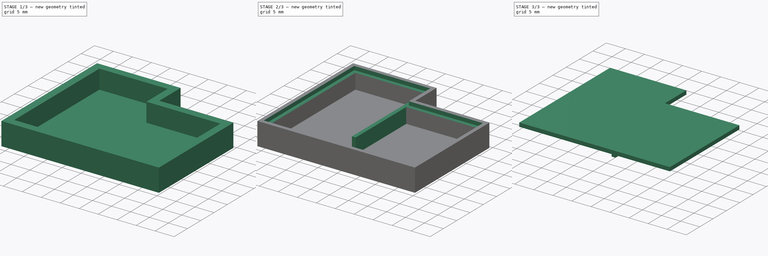
[diagram: build sequence overview — one tinted view per stage of 3, left to right]
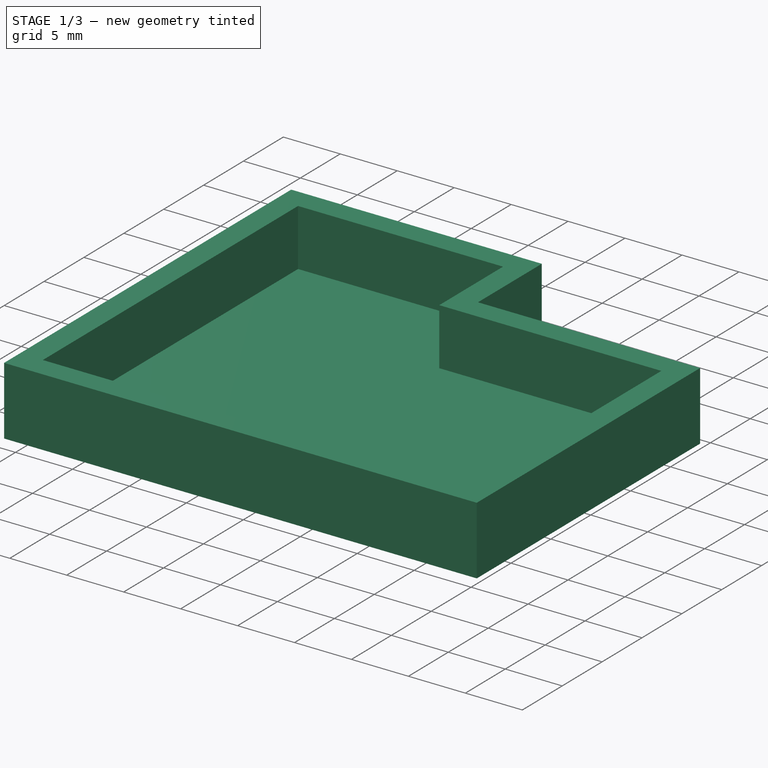
[diagram: stage 1 of 3 — iso view after this stage's code; geometry added in this stage tinted green]
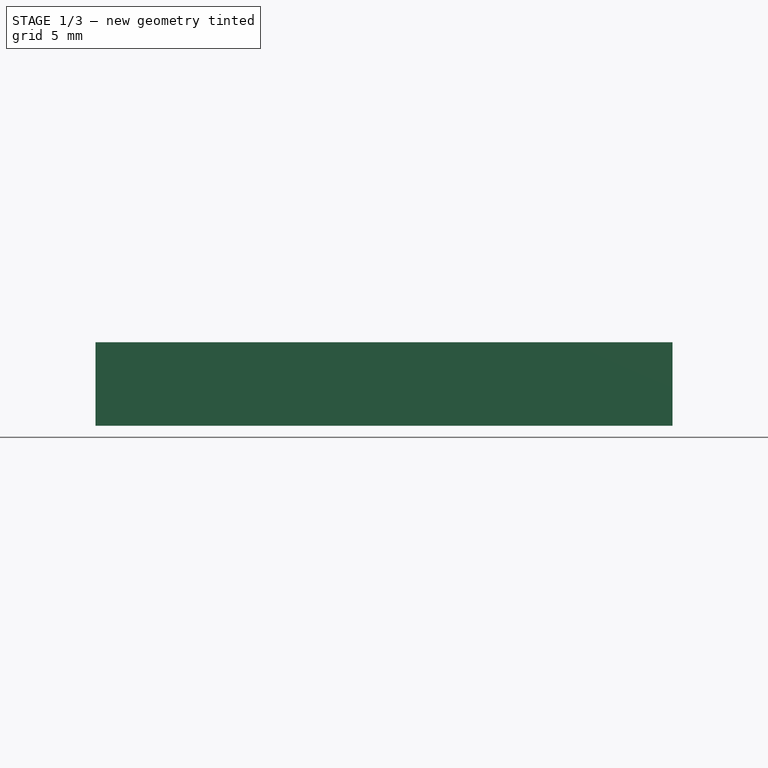
[diagram: stage 1 of 3 — front view after this stage's code; geometry added in this stage tinted green]
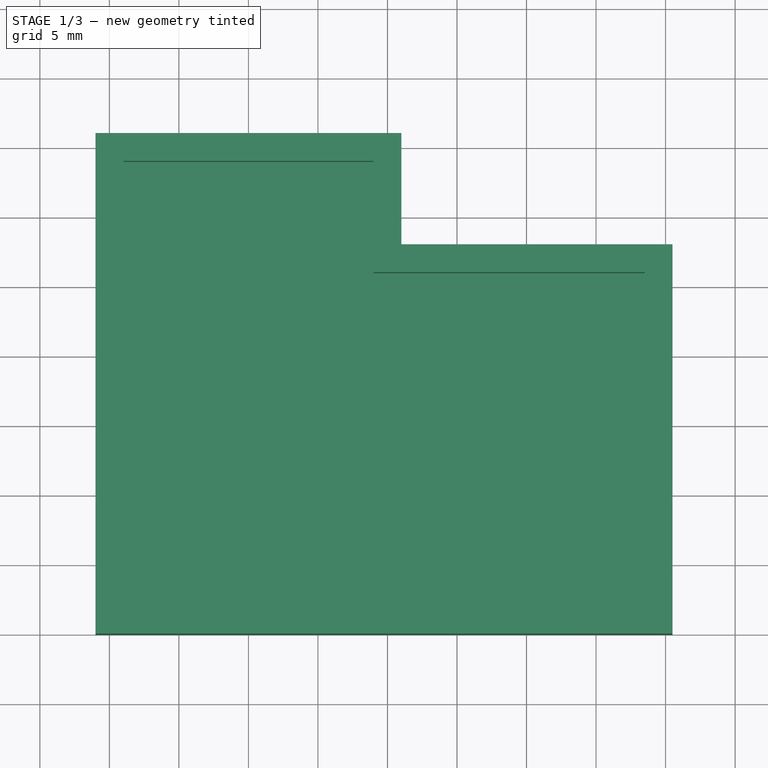
[diagram: stage 1 of 3 — top view after this stage's code; geometry added in this stage tinted green]
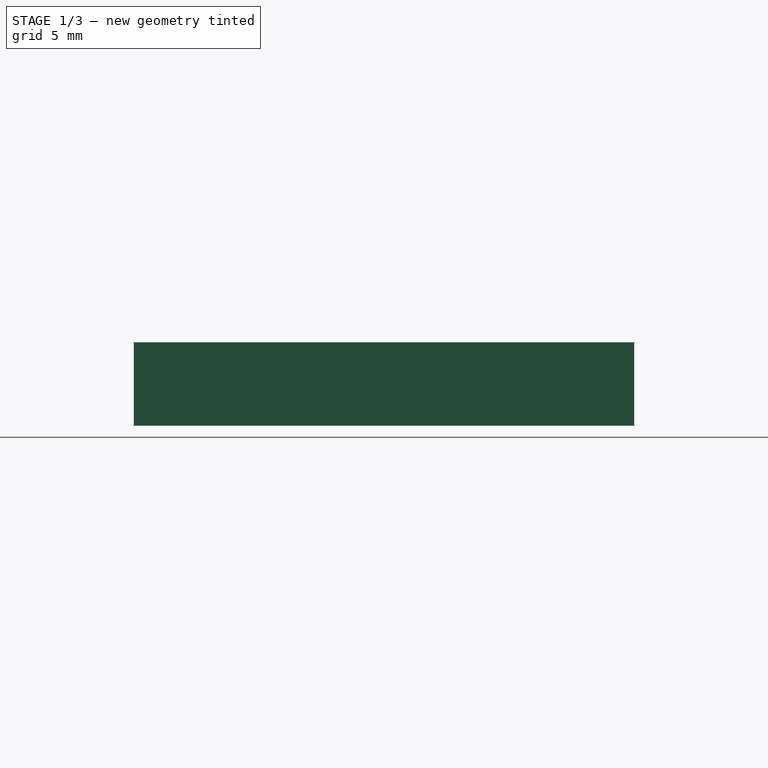
[diagram: stage 1 of 3 — right view after this stage's code; geometry added in this stage tinted green]
FCSTD DOCUMENT  (FreeCAD 1.0R39285 (Git))
Label: Couvercle
License: All rights reserved
LicenseURL: https://en.wikipedia.org/wiki/All_rights_reserved
objects: Sketcher::SketchObject×8, PartDesign::Pad×4, PartDesign::Pocket×4, PartDesign::Body×1
note: 41 computed .brp shape members not serialized (recipe doc carries the construction recipe); baked Part::Feature solids carry a one-line shape summary decoded from their .brp

FEATURE [Sketcher::SketchObject] Sketch
  ArcFitTolerance = 1e-06
  AttachmentSupport = -> [XY_Plane]
  FullyConstrained = true
  MakeInternals = false
  MapMode = 5
  sketch-geometry (4):
    g0: LineSegment StartX=-21 StartY=0 StartZ=0 EndX=20.5 EndY=0 EndZ=0
    g1: LineSegment StartX=20.5 StartY=0 StartZ=0 EndX=20.5 EndY=36 EndZ=0
    g2: LineSegment StartX=20.5 StartY=36 StartZ=0 EndX=-21 EndY=36 EndZ=0
    g3: LineSegment StartX=-21 StartY=36 StartZ=0 EndX=-21 EndY=0 EndZ=0
  constraints (12):
    c: Coincident(g0,g1)
    c: Coincident(g1,g2)
    c: Coincident(g2,g3)
    c: Coincident(g3,g0)
    c: Horizontal(g0)
    c: Horizontal(g2)
    c: Vertical(g1)
    c: Vertical(g3)
    c: PointOnObject(g0,g-1)
    c: DistanceX(g0,g-1) = 21
    c: DistanceX(g-1,g0) = 20.5
    c: DistanceY(g3,g3) = 36
FEATURE [PartDesign::Pad] Pad
  Direction = (0,0,1)
  Length = 6
  Length2 = 10
  Profile = -> Sketch
  ReferenceAxis = -> Sketch [N_Axis]
  Refine = true
  Suppressed = false
  Type = 0
FEATURE [Sketcher::SketchObject] Sketch001
  ArcFitTolerance = 1e-06
  AttachmentSupport = -> [Pad]
  ExternalGeometry = -> [Pad]
  FullyConstrained = true
  MakeInternals = false
  MapMode = 5
  Placement = pos=(0,0,6) rot=(0,0,1;0rad)
  sketch-geometry (6):
    g0: LineSegment StartX=-19 StartY=2 StartZ=0 EndX=18.5 EndY=2 EndZ=0
    g1: LineSegment StartX=-1 StartY=34 StartZ=0 EndX=-19 EndY=34 EndZ=0
    g2: LineSegment StartX=-19 StartY=34 StartZ=0 EndX=-19 EndY=2 EndZ=0
    g3: LineSegment StartX=18.5 StartY=2 StartZ=0 EndX=18.5 EndY=26 EndZ=0
    g4: LineSegment StartX=18.5 StartY=26 StartZ=0 EndX=-1 EndY=26 EndZ=0
    g5: LineSegment StartX=-1 StartY=26 StartZ=0 EndX=-1 EndY=34 EndZ=0
  constraints (18):
    c: Coincident(g1,g2)
    c: Coincident(g2,g0)
    c: Horizontal(g0)
    c: Horizontal(g1)
    c: Vertical(g2)
    c: DistanceX(g-3,g0) = 2
    c: DistanceY(g-3,g0) = 2
    c: DistanceY(g1,g-3) = 2
    c: DistanceX(g0,g-4) = 2
    c: Coincident(g3,g0)
    c: Vertical(g3)
    c: Coincident(g4,g3)
    c: Horizontal(g4)
    c: Coincident(g5,g4)
    c: Vertical(g5)
    c: Coincident(g1,g5)
    c: DistanceY(g3,g3) = 24
    c: DistanceX(g4,g-1) = 1
FEATURE [PartDesign::Pocket] Pocket
  BaseFeature = -> Pad
  Direction = (0,0,-1)
  Length = 5
  Length2 = 5
  Profile = -> Sketch001
  ReferenceAxis = -> Sketch001 [N_Axis]
  Refine = true
  Suppressed = false
  Type = 0
FEATURE [Sketcher::SketchObject] Sketch002
  ArcFitTolerance = 1e-06
  AttachmentSupport = -> [Pocket]
  ExternalGeometry = -> [Pocket]
  FullyConstrained = true
  MakeInternals = false
  MapMode = 5
  Placement = pos=(0,0,6) rot=(0,0,1;0rad)
  sketch-geometry (4):
    g0: LineSegment StartX=20.5 StartY=36 StartZ=0 EndX=1 EndY=36 EndZ=0
    g1: LineSegment StartX=1 StartY=36 StartZ=0 EndX=1 EndY=28 EndZ=0
    g2: LineSegment StartX=1 StartY=28 StartZ=0 EndX=20.5 EndY=28 EndZ=0
    g3: LineSegment StartX=20.5 StartY=28 StartZ=0 EndX=20.5 EndY=36 EndZ=0
  constraints (11):
    c: Coincident(g0,g1)
    c: Coincident(g1,g2)
    c: Coincident(g2,g3)
    c: Coincident(g3,g0)
    c: Horizontal(g0)
    c: Horizontal(g2)
    c: Vertical(g1)
    c: Vertical(g3)
    c: Coincident(g0,g-3)
    c: DistanceX(g-4,g1) = 2
    c: DistanceY(g-4,g1) = 2
FEATURE [PartDesign::Pocket] Pocket001
  BaseFeature = -> Pocket
  Direction = (0,0,-1)
  Length = 5
  Length2 = 5
  Profile = -> Sketch002
  ReferenceAxis = -> Sketch002 [N_Axis]
  Refine = true
  Suppressed = false
  Type = 1
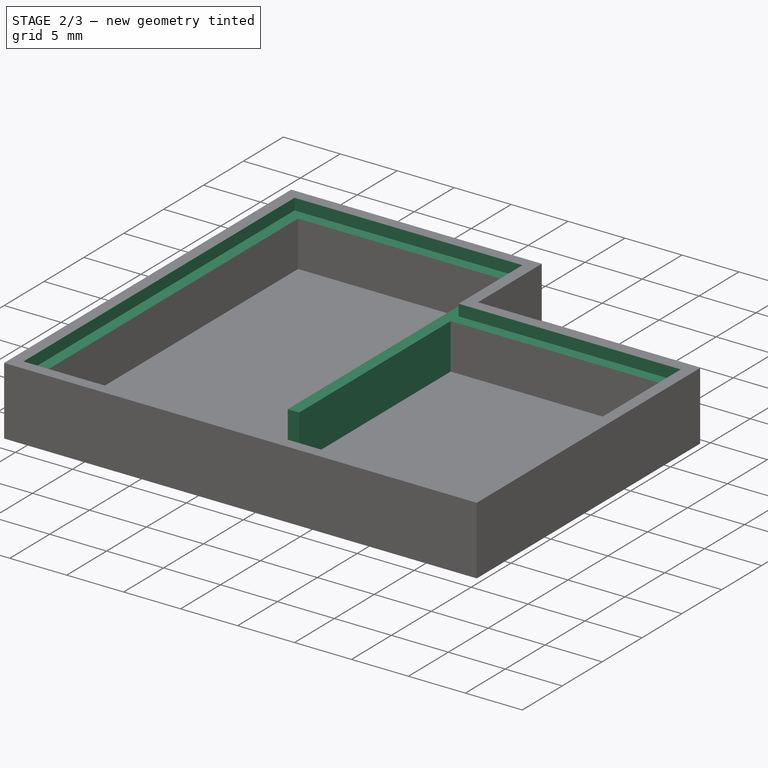
[diagram: stage 2 of 3 — iso view after this stage's code; geometry added in this stage tinted green]
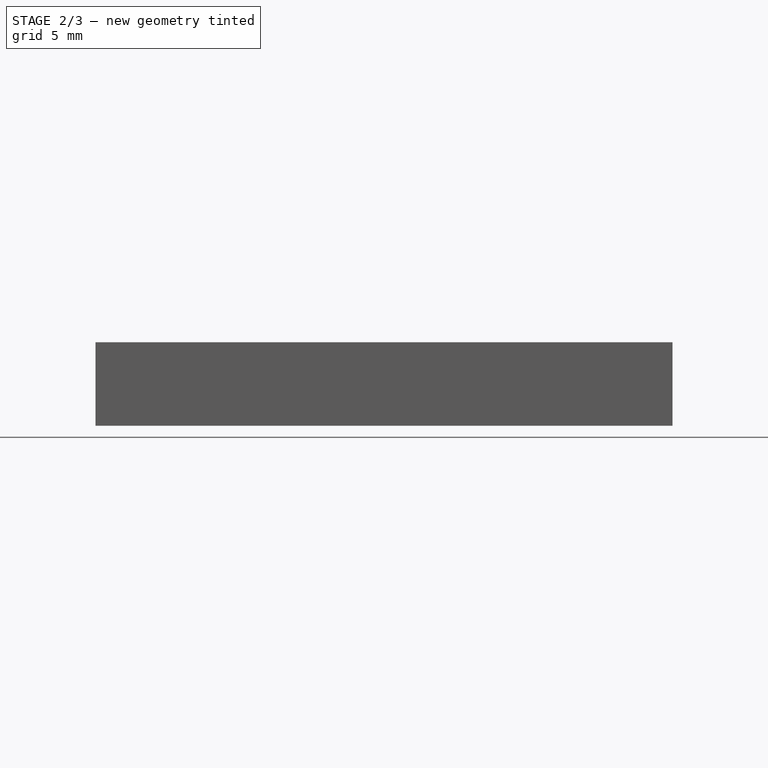
[diagram: stage 2 of 3 — front view after this stage's code; geometry added in this stage tinted green]
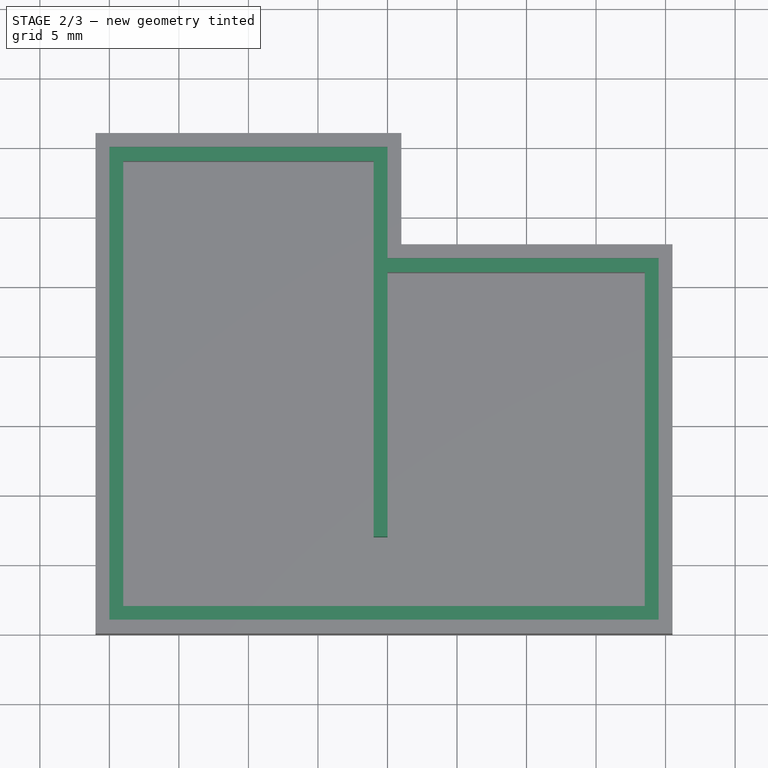
[diagram: stage 2 of 3 — top view after this stage's code; geometry added in this stage tinted green]
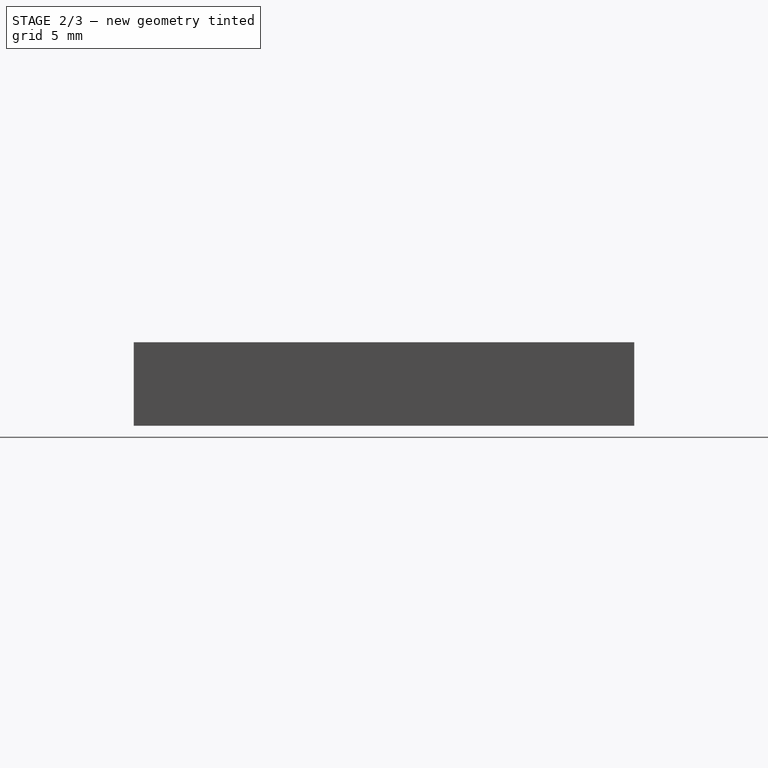
[diagram: stage 2 of 3 — right view after this stage's code; geometry added in this stage tinted green]
FEATURE [Sketcher::SketchObject] Sketch004
  ArcFitTolerance = 1e-06
  AttachmentSupport = -> [Pocket001]
  ExternalGeometry = -> [Pocket001]
  FullyConstrained = true
  MakeInternals = false
  MapMode = 5
  Placement = pos=(0,0,6) rot=(0,0,1;0rad)
  sketch-geometry (6):
    g0: LineSegment StartX=-20 StartY=35 StartZ=0 EndX=0 EndY=35 EndZ=0
    g1: LineSegment StartX=0 StartY=35 StartZ=0 EndX=0 EndY=27 EndZ=0
    g2: LineSegment StartX=0 StartY=27 StartZ=0 EndX=19.5 EndY=27 EndZ=0
    g3: LineSegment StartX=19.5 StartY=27 StartZ=0 EndX=19.5 EndY=1 EndZ=0
    g4: LineSegment StartX=19.5 StartY=1 StartZ=0 EndX=-20 EndY=1 EndZ=0
    g5: LineSegment StartX=-20 StartY=1 StartZ=0 EndX=-20 EndY=35 EndZ=0
  constraints (18):
    c: PointOnObject(g0,g-2)
    c: Horizontal(g0)
    c: Coincident(g0,g1)
    c: PointOnObject(g1,g-2)
    c: Coincident(g1,g2)
    c: Horizontal(g2)
    c: Coincident(g2,g3)
    c: Vertical(g3)
    c: Coincident(g3,g4)
    c: Horizontal(g4)
    c: Coincident(g4,g5)
    c: Coincident(g5,g0)
    c: Vertical(g5)
    c: DistanceX(g0,g-3) = 1
    c: DistanceY(g-3,g0) = 1
    c: DistanceX(g-5,g3) = 1
    c: DistanceY(g3,g-5) = 1
    c: DistanceY(g-4,g1) = 1
FEATURE [PartDesign::Pocket] Pocket002  label="Pocket_Boitier"
  BaseFeature = -> Pocket001
  Direction = (0,0,-1)
  Length = 1
  Length2 = 5
  Profile = -> Sketch004
  ReferenceAxis = -> Sketch004 [N_Axis]
  Refine = true
  Suppressed = false
  Type = 0
FEATURE [Sketcher::SketchObject] Sketch005
  ArcFitTolerance = 1e-06
  AttachmentSupport = -> [Pocket002]
  ExternalGeometry = -> [Pocket002]
  FullyConstrained = true
  MakeInternals = false
  MapMode = 5
  Placement = pos=(0,0,1) rot=(0,0,1;0rad)
  sketch-geometry (4):
    g0: LineSegment StartX=-1 StartY=26 StartZ=0 EndX=-1 EndY=7 EndZ=0
    g1: LineSegment StartX=-1 StartY=7 StartZ=0 EndX=0 EndY=7 EndZ=0
    g2: LineSegment StartX=0 StartY=7 StartZ=0 EndX=0 EndY=26 EndZ=0
    g3: LineSegment StartX=0 StartY=26 StartZ=0 EndX=-1 EndY=26 EndZ=0
  constraints (11):
    c: Coincident(g0,g1)
    c: Coincident(g1,g2)
    c: Coincident(g2,g3)
    c: Coincident(g3,g0)
    c: Vertical(g0)
    c: Vertical(g2)
    c: Horizontal(g1)
    c: Horizontal(g3)
    c: Coincident(g0,g-3)
    c: DistanceX(g0,g2) = 1
    c: DistanceY(g-4,g1) = 5
FEATURE [PartDesign::Pad] Pad001  label="Pad_Boitier"
  BaseFeature = -> Pocket002
  Direction = (0,0,1)
  Length = 4
  Length2 = 10
  Profile = -> Sketch005
  ReferenceAxis = -> Sketch005 [N_Axis]
  Refine = true
  Suppressed = false
  Type = 0
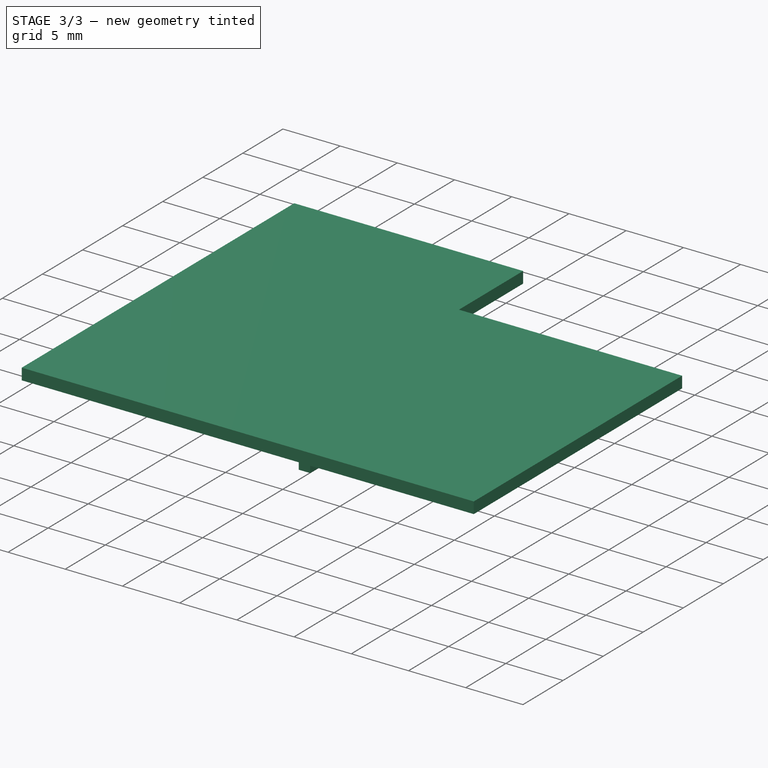
[diagram: stage 3 of 3 — iso view after this stage's code; geometry added in this stage tinted green]
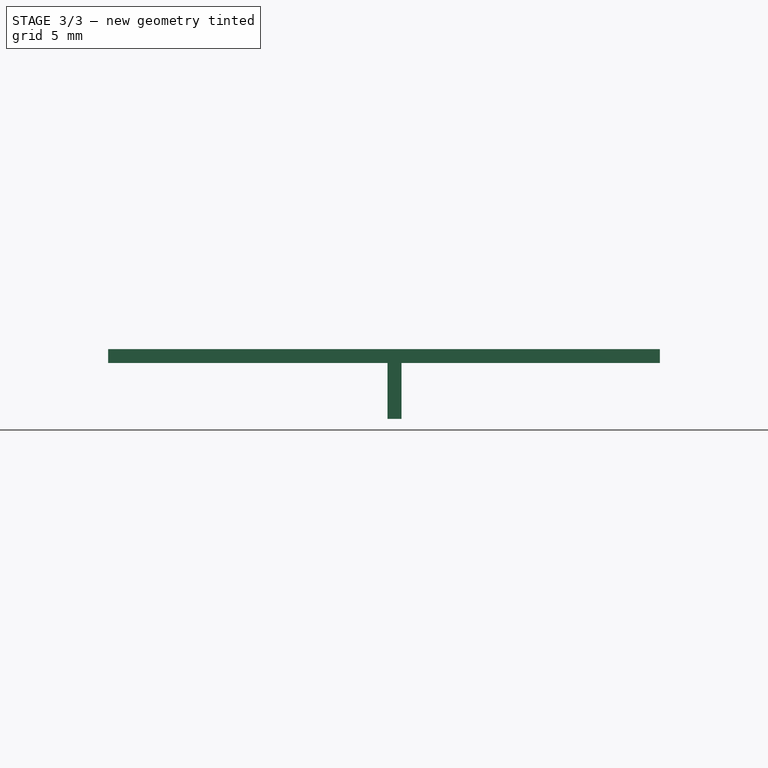
[diagram: stage 3 of 3 — front view after this stage's code; geometry added in this stage tinted green]
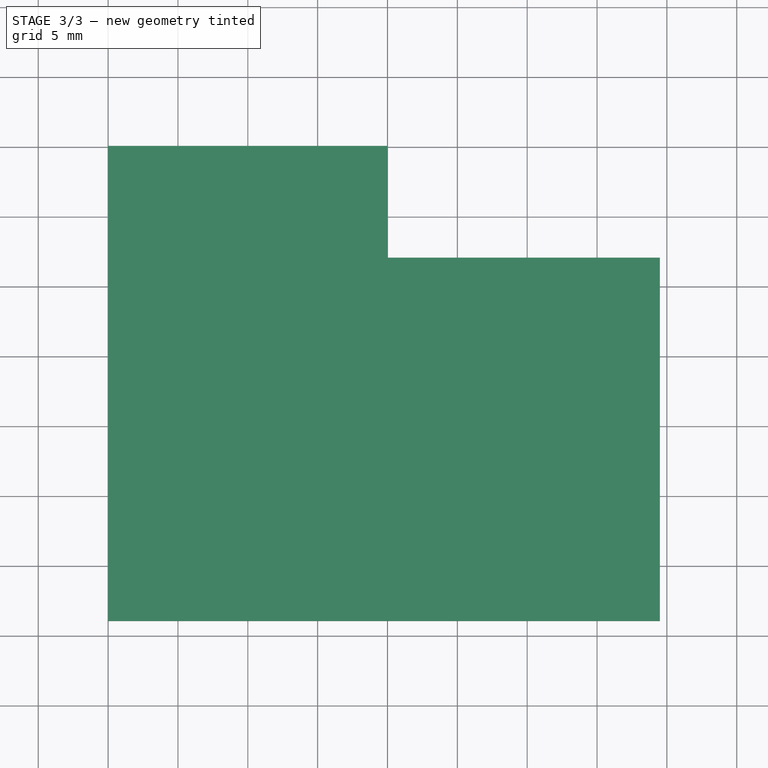
[diagram: stage 3 of 3 — top view after this stage's code; geometry added in this stage tinted green]
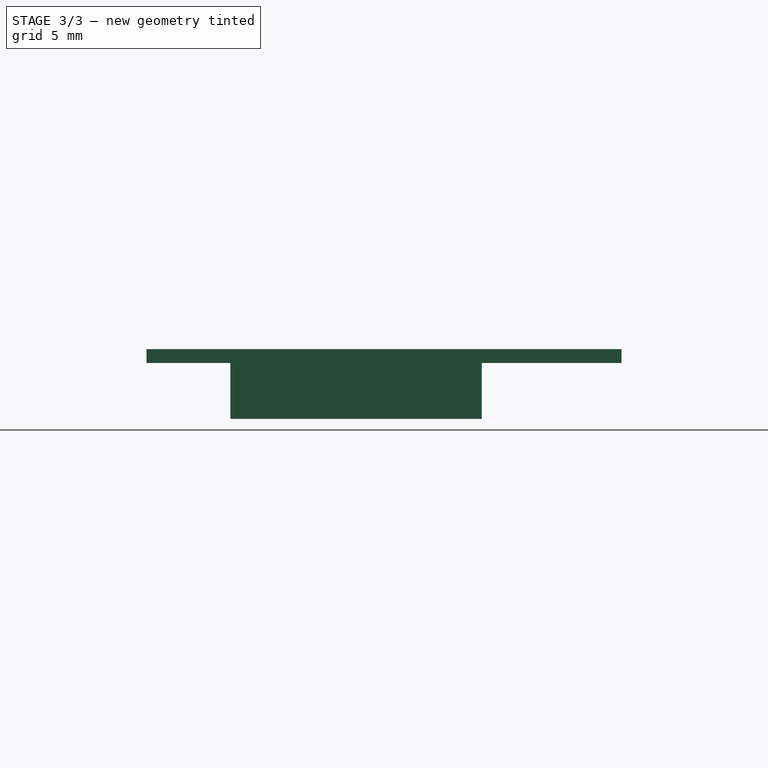
[diagram: stage 3 of 3 — right view after this stage's code; geometry added in this stage tinted green]
FEATURE [Sketcher::SketchObject] Sketch006
  ArcFitTolerance = 1e-06
  AttachmentSupport = -> [Pad001]
  ExternalGeometry = -> [Pad001]
  FullyConstrained = true
  MakeInternals = false
  MapMode = 5
  Placement = pos=(0,0,6) rot=(0,0,1;0rad)
  sketch-geometry (6):
    g0: LineSegment StartX=-20 StartY=35 StartZ=0 EndX=0 EndY=35 EndZ=0
    g1: LineSegment StartX=0 StartY=35 StartZ=0 EndX=0 EndY=27 EndZ=0
    g2: LineSegment StartX=0 StartY=27 StartZ=0 EndX=19.5 EndY=27 EndZ=0
    g3: LineSegment StartX=19.5 StartY=27 StartZ=0 EndX=19.5 EndY=1 EndZ=0
    g4: LineSegment StartX=19.5 StartY=1 StartZ=0 EndX=-20 EndY=1 EndZ=0
    g5: LineSegment StartX=-20 StartY=1 StartZ=0 EndX=-20 EndY=35 EndZ=0
  constraints (13):
    c: Coincident(g-3,g0)
    c: Coincident(g0,g-3)
    c: Coincident(g0,g1)
    c: PointOnObject(g1,g-2)
    c: Coincident(g1,g2)
    c: Coincident(g2,g-5)
    c: Horizontal(g2)
    c: Coincident(g2,g3)
    c: Coincident(g3,g-5)
    c: Coincident(g3,g4)
    c: Coincident(g4,g-4)
    c: Coincident(g4,g5)
    c: Coincident(g5,g0)
FEATURE [PartDesign::Pad] Pad002
  BaseFeature = -> Pad001
  Direction = (0,0,1)
  Length = 10
  Length2 = 10
  Profile = -> Sketch006
  ReferenceAxis = -> Sketch006 [N_Axis]
  Refine = true
  Reversed = true
  Suppressed = false
  Type = 0
FEATURE [Sketcher::SketchObject] Sketch007
  ArcFitTolerance = 1e-06
  AttachmentSupport = -> [Pad002]
  ExternalGeometry = -> [Pad002]
  FullyConstrained = false
  MakeInternals = false
  MapMode = 5
  Placement = pos=(-21,0,0) rot=(0.57735,-0.57735,-0.57735;2.0944rad)
  sketch-geometry (4):
    g0: LineSegment StartX=-41.2353 StartY=17.8413 StartZ=0 EndX=-41.2353 EndY=-3 EndZ=0
    g1: LineSegment StartX=-41.2353 StartY=-3 StartZ=0 EndX=11.465 EndY=-3 EndZ=0
    g2: LineSegment StartX=11.465 StartY=-3 StartZ=0 EndX=11.465 EndY=17.8413 EndZ=0
    g3: LineSegment StartX=11.465 StartY=17.8413 StartZ=0 EndX=-41.2353 EndY=17.8413 EndZ=0
  constraints (9):
    c: Coincident(g0,g1)
    c: Coincident(g1,g2)
    c: Coincident(g2,g3)
    c: Coincident(g3,g0)
    c: Vertical(g0)
    c: Vertical(g2)
    c: Horizontal(g1)
    c: Horizontal(g3)
    c: DistanceY(g-3,g0) = 1
FEATURE [PartDesign::Pocket] Pocket003
  BaseFeature = -> Pad002
  Direction = (1,0,0)
  Length = 5
  Length2 = 5
  Profile = -> Sketch007
  ReferenceAxis = -> Sketch007 [N_Axis]
  Refine = true
  Suppressed = false
  Type = 1
FEATURE [Sketcher::SketchObject] Sketch008
  ArcFitTolerance = 1e-06
  AttachmentSupport = -> [Pocket003]
  ExternalGeometry = -> [Pocket003]
  FullyConstrained = true
  MakeInternals = false
  MapMode = 5
  Placement = pos=(0,0,-4) rot=(1,0,0;3.14159rad)
  sketch-geometry (4):
    g0: LineSegment StartX=0 StartY=-7 StartZ=0 EndX=0 EndY=-25 EndZ=0
    g1: LineSegment StartX=0 StartY=-25 StartZ=0 EndX=1 EndY=-25 EndZ=0
    g2: LineSegment StartX=1 StartY=-25 StartZ=0 EndX=1 EndY=-7 EndZ=0
    g3: LineSegment StartX=1 StartY=-7 StartZ=0 EndX=0 EndY=-7 EndZ=0
  constraints (12):
    c: Coincident(g0,g1)
    c: Coincident(g1,g2)
    c: Coincident(g2,g3)
    c: Coincident(g3,g0)
    c: Vertical(g0)
    c: Vertical(g2)
    c: Horizontal(g1)
    c: Horizontal(g3)
    c: PointOnObject(g0,g-2)
    c: DistanceY(g-3,g1) = 2
    c: DistanceY(g2,g-1) = 7
    c: DistanceX(g3,g3) = 1
FEATURE [PartDesign::Pad] Pad003  label="Pad_Couvercle"
  BaseFeature = -> Pocket003
  Direction = (0,0,-1)
  Length = 4
  Length2 = 10
  Profile = -> Sketch008
  ReferenceAxis = -> Sketch008 [N_Axis]
  Refine = true
  Suppressed = false
  Type = 0
FEATURE [PartDesign::Body] Body  label="Corps"
  AllowCompound = false
  Group = -> [Sketch,Pad,Sketch001,Pocket,Sketch002,Pocket001,Sketch004,Pocket002,Sketch005,Pad001,Sketch006,Pad002,Sketch007,Pocket003,Sketch008,Pad003]
  Origin = -> Origin
  Tip = -> Pad003
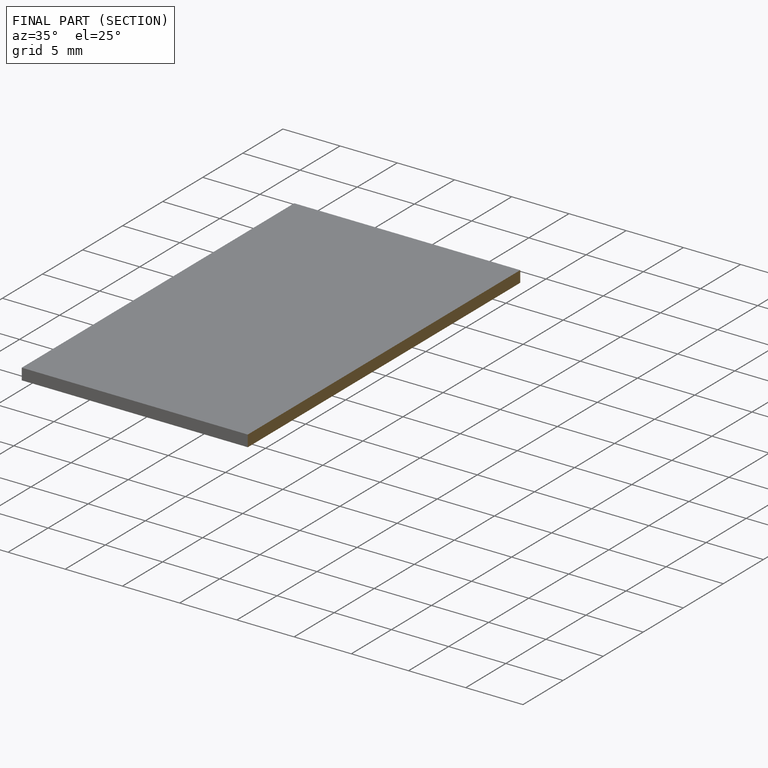
[diagram: finished part — half-section view (interior)]
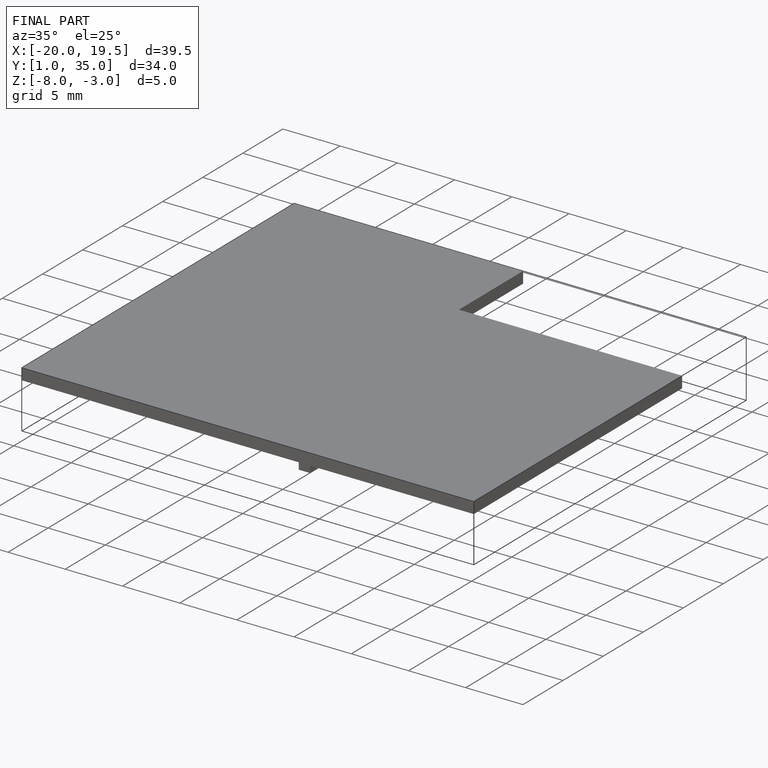
[diagram: finished part — iso view with bounding-box wireframe]
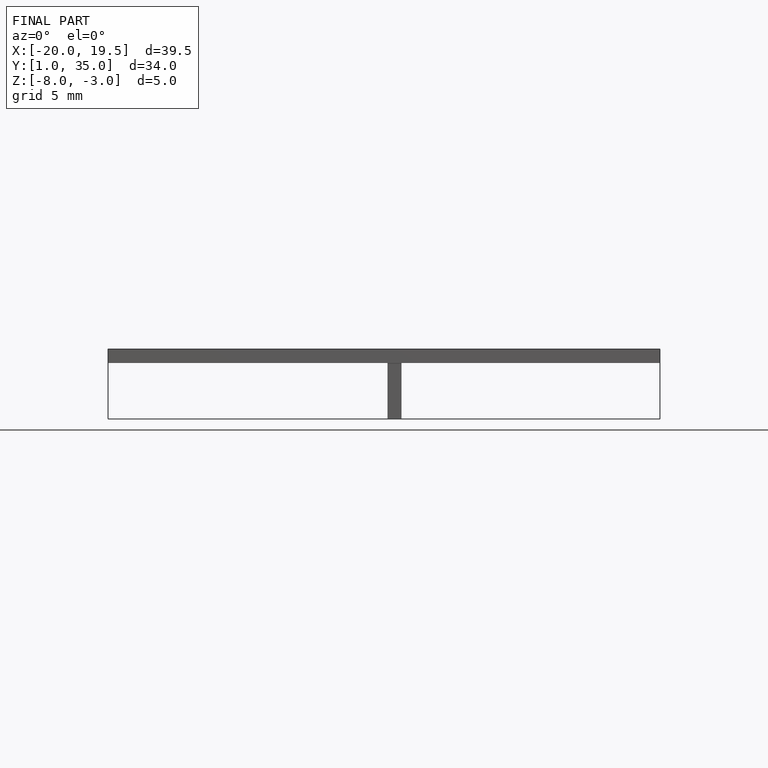
[diagram: finished part — front view with bounding-box wireframe]
